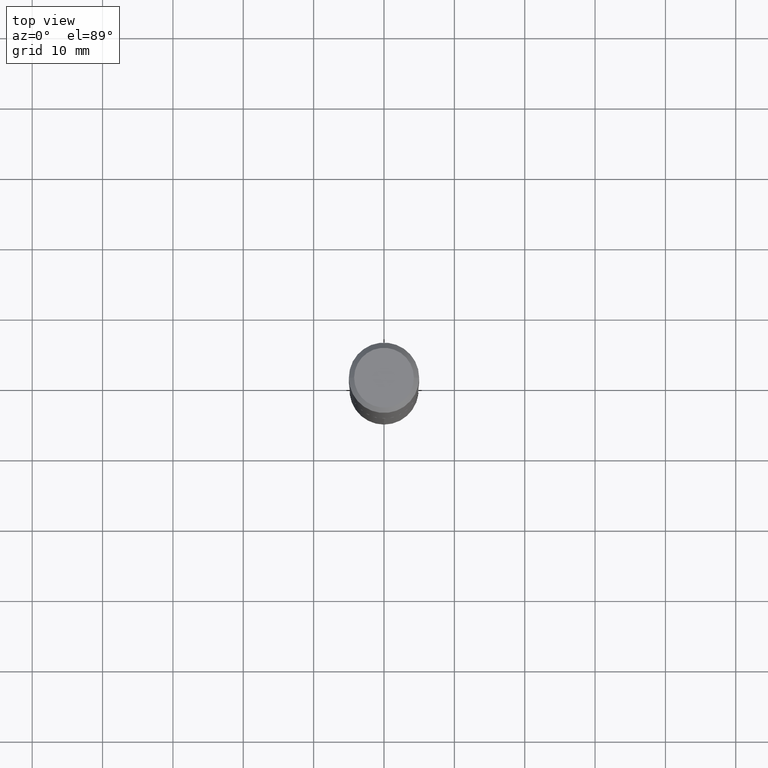
[diagram: clean part render]
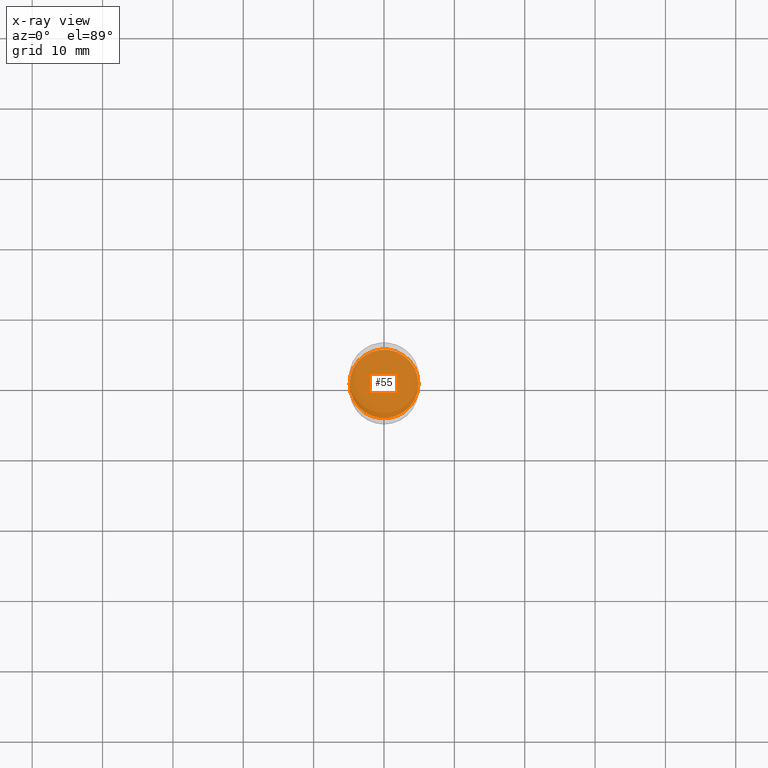
[diagram: x-ray — body ghosted, one internal face saturated and labeled with its STEP entity id]
A machine part, top view, then the same camera in x-ray: the body is ghosted and one INTERNAL B-rep face — a face not visible from any outside direction — is saturated and labeled: STEP entity #55.
In plain terms, the highlighted planar face has unit normal (-0, 0, 1).
Its self-contained STEP definition (entity closure, byte-faithful):
#7 = EDGE_LOOP ( 'NONE', ( #147, #271 ) ) ;
#28 = DIRECTION ( 'NONE',  ( 1.000000000000000000, -6.982962677686266711E-15, 0.000000000000000000 ) ) ;
#34 = EDGE_CURVE ( 'NONE', #38, #301, #81, .T. ) ;
#38 = VERTEX_POINT ( 'NONE', #346 ) ;
#39 = AXIS2_PLACEMENT_3D ( 'NONE', #233, #386, #391 ) ;
#55 = ADVANCED_FACE ( 'NONE', ( #425 ), #77, .F. ) ;
#60 = EDGE_CURVE ( 'NONE', #301, #38, #151, .T. ) ;
#77 = PLANE ( 'NONE',  #465 ) ;
#81 = CIRCLE ( 'NONE', #39, 0.1923999999999999877 ) ;
#99 = AXIS2_PLACEMENT_3D ( 'NONE', #253, #280, #28 ) ;
#146 = CARTESIAN_POINT ( 'NONE',  ( 0.1923999999999999877, -8.463699913489665713E-15, -2.039300000000000335 ) ) ;
#147 = ORIENTED_EDGE ( 'NONE', *, *, #60, .F. ) ;
#151 = CIRCLE ( 'NONE', #99, 0.1923999999999999877 ) ;
#233 = CARTESIAN_POINT ( 'NONE',  ( 4.987044536453349565E-29, -7.120177894302827657E-15, -2.039300000000000335 ) ) ;
#253 = CARTESIAN_POINT ( 'NONE',  ( 4.987044536453349565E-29, -7.120177894302827657E-15, -2.039300000000000335 ) ) ;
#267 = DIRECTION ( 'NONE',  ( -2.438088387897960049E-29, 3.491481338843145188E-15, 1.000000000000000000 ) ) ;
#271 = ORIENTED_EDGE ( 'NONE', *, *, #34, .F. ) ;
#280 = DIRECTION ( 'NONE',  ( -2.445468806185136597E-29, 3.491481338843145583E-15, 1.000000000000000000 ) ) ;
#301 = VERTEX_POINT ( 'NONE', #146 ) ;
#346 = CARTESIAN_POINT ( 'NONE',  ( -0.1923999999999999877, -5.750444443526283588E-15, -2.039300000000000335 ) ) ;
#370 = DIRECTION ( 'NONE',  ( 1.000000000000000000, -6.982962677686265922E-15, 4.876176775795935793E-29 ) ) ;
#386 = DIRECTION ( 'NONE',  ( -2.445468806185136597E-29, 3.491481338843145583E-15, 1.000000000000000000 ) ) ;
#391 = DIRECTION ( 'NONE',  ( 1.000000000000000000, -6.982962677686266711E-15, 0.000000000000000000 ) ) ;
#425 = FACE_OUTER_BOUND ( 'NONE', #7, .T. ) ;
#465 = AXIS2_PLACEMENT_3D ( 'NONE', #468, #267, #370 ) ;
#468 = CARTESIAN_POINT ( 'NONE',  ( 2.965085732390590287E-29, -1.001573798446890501E-14, -2.039300000000000335 ) ) ;